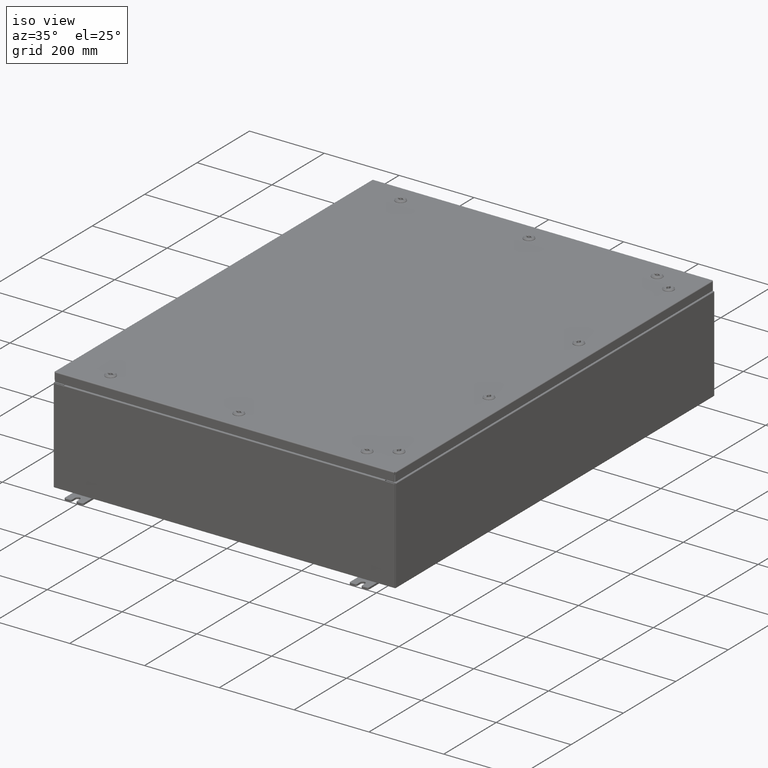
[diagram: clean part render]
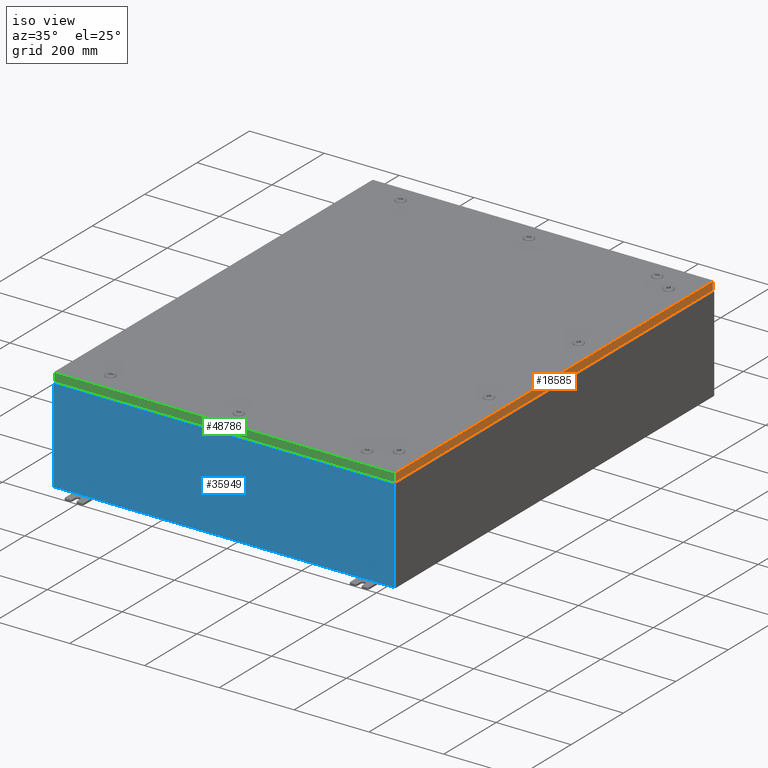
[diagram: same view with three faces highlighted in distinct colors, each labeled with its STEP entity id]
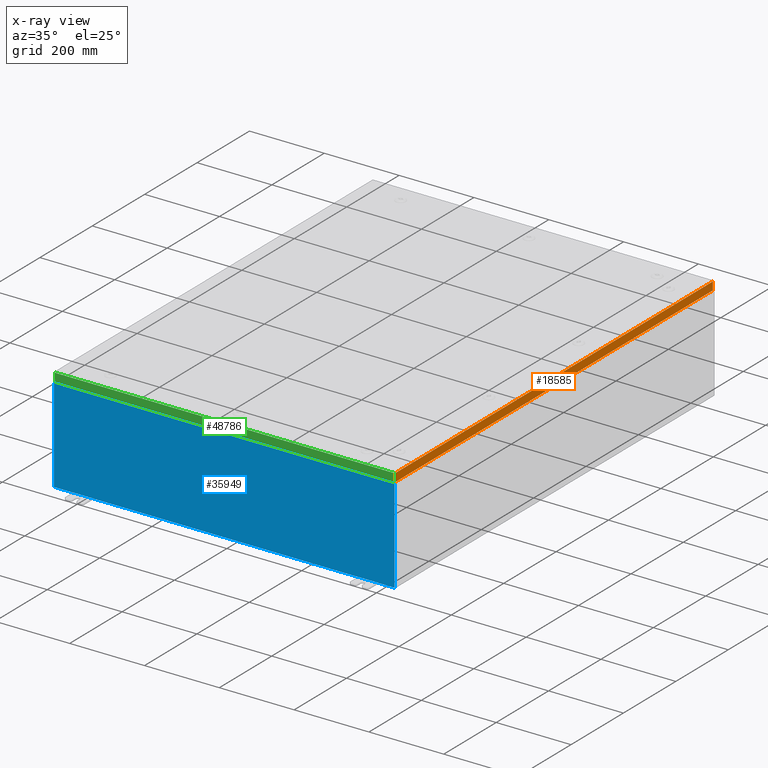
[diagram: x-ray of the same camera — body ghosted, the three highlighted faces saturated]
A machine part, iso view with three faces highlighted in distinct colors.
The next image is the same camera in x-ray (body ghosted, the three faces saturated) — at least one of them is partly hidden behind the body in this view.
Their STEP definitions:

[orange] entity #18585 — the highlighted planar face has unit normal (1, 0, 0).
#2752 = EDGE_CURVE ( 'NONE', #46686, #28953, #47072, .T. ) ;
#3829 = DIRECTION ( 'NONE',  ( 2.532419924601866100E-015, 0.0000000000000000000, -1.000000000000000000 ) ) ;
#3833 = VECTOR ( 'NONE', #40261, 39.37007874015748100 ) ;
#4733 = VECTOR ( 'NONE', #31591, 39.37007874015748100 ) ;
#9119 = VECTOR ( 'NONE', #50336, 39.37007874015748100 ) ;
#14327 = CARTESIAN_POINT ( 'NONE',  ( 17.93750000000000400, 0.0000000000000000000, 4.568609605355756000E-014 ) ) ;
#15690 = VERTEX_POINT ( 'NONE', #41107 ) ;
#18000 = LINE ( 'NONE', #40040, #3833 ) ;
#18585 = ADVANCED_FACE ( 'NONE', ( #44706 ), #30316, .T. ) ;
#19884 = AXIS2_PLACEMENT_3D ( 'NONE', #14327, #35665, #3829 ) ;
#20406 = VECTOR ( 'NONE', #26766, 39.37007874015748100 ) ;
#21076 = EDGE_CURVE ( 'NONE', #46686, #15690, #18000, .T. ) ;
#21451 = CARTESIAN_POINT ( 'NONE',  ( 17.93750000000000400, 0.0000000000000000000, -0.08770000000000008300 ) ) ;
#21709 = CARTESIAN_POINT ( 'NONE',  ( 17.93750000000000400, -23.84865786437626800, -0.08770000000000008300 ) ) ;
#22495 = EDGE_CURVE ( 'NONE', #28953, #25943, #48601, .T. ) ;
#23913 = CARTESIAN_POINT ( 'NONE',  ( 17.93750000000000400, -23.84865786437626800, -0.07469999999999980800 ) ) ;
#24496 = ORIENTED_EDGE ( 'NONE', *, *, #22495, .T. ) ;
#24933 = LINE ( 'NONE', #23913, #9119 ) ;
#25023 = ORIENTED_EDGE ( 'NONE', *, *, #2752, .T. ) ;
#25914 = ORIENTED_EDGE ( 'NONE', *, *, #21076, .F. ) ;
#25943 = VERTEX_POINT ( 'NONE', #21709 ) ;
#26766 = DIRECTION ( 'NONE',  ( 0.0000000000000000000, -1.000000000000000000, 0.0000000000000000000 ) ) ;
#28953 = VERTEX_POINT ( 'NONE', #68730 ) ;
#30316 = PLANE ( 'NONE',  #19884 ) ;
#31591 = DIRECTION ( 'NONE',  ( -2.532419924601866100E-015, -6.982962677686265900E-015, 1.000000000000000000 ) ) ;
#35665 = DIRECTION ( 'NONE',  ( 1.000000000000000000, 0.0000000000000000000, 2.532419924601866100E-015 ) ) ;
#37496 = CARTESIAN_POINT ( 'NONE',  ( 17.93750000000000400, 23.84865786437627500, 2.122203838334061400E-013 ) ) ;
#40040 = CARTESIAN_POINT ( 'NONE',  ( 17.93750000000000700, -23.93750000000000000, -0.9376999999999997600 ) ) ;
#40261 = DIRECTION ( 'NONE',  ( 0.0000000000000000000, -1.000000000000000000, 0.0000000000000000000 ) ) ;
#41107 = CARTESIAN_POINT ( 'NONE',  ( 17.93750000000000700, -23.84865786437626100, -0.9376999999999997600 ) ) ;
#41453 = CARTESIAN_POINT ( 'NONE',  ( 17.93750000000000700, 23.84865786437627800, -0.9376999999999997600 ) ) ;
#44706 = FACE_OUTER_BOUND ( 'NONE', #61059, .T. ) ;
#46686 = VERTEX_POINT ( 'NONE', #41453 ) ;
#47072 = LINE ( 'NONE', #37496, #4733 ) ;
#48601 = LINE ( 'NONE', #21451, #20406 ) ;
#50336 = DIRECTION ( 'NONE',  ( -2.532419924601866100E-015, -6.982962677686265900E-015, 1.000000000000000000 ) ) ;
#51911 = EDGE_CURVE ( 'NONE', #15690, #25943, #24933, .T. ) ;
#52709 = ORIENTED_EDGE ( 'NONE', *, *, #51911, .F. ) ;
#61059 = EDGE_LOOP ( 'NONE', ( #52709, #25914, #25023, #24496 ) ) ;
#68730 = CARTESIAN_POINT ( 'NONE',  ( 17.93750000000000400, 23.84865786437627100, -0.08770000000000008300 ) ) ;

[blue] entity #35949 — the highlighted planar face has unit normal (-0, 1, -0).
#109 = EDGE_CURVE ( 'NONE', #26538, #57749, #40598, .T. ) ;
#345 = VERTEX_POINT ( 'NONE', #37772 ) ;
#352 = CARTESIAN_POINT ( 'NONE',  ( 16.88720000000000000, 0.0000000000000000000, 4.874950000000000100 ) ) ;
#797 = CARTESIAN_POINT ( 'NONE',  ( -16.88720000000000000, -0.0000000000000000000, 0.0000000000000000000 ) ) ;
#1200 = VECTOR ( 'NONE', #51489, 39.37007874015748100 ) ;
#1507 = EDGE_CURVE ( 'NONE', #40546, #9545, #66312, .T. ) ;
#2013 = ORIENTED_EDGE ( 'NONE', *, *, #1507, .T. ) ;
#2713 = ORIENTED_EDGE ( 'NONE', *, *, #109, .T. ) ;
#3006 = DIRECTION ( 'NONE',  ( 1.000000000000000000, 0.0000000000000000000, 0.0000000000000000000 ) ) ;
#4511 = CARTESIAN_POINT ( 'NONE',  ( -17.92530000000000000, 0.0000000000000000000, -4.925300000000000000 ) ) ;
#4955 = CARTESIAN_POINT ( 'NONE',  ( -16.88720000000000000, -7.171100983368691200E-016, 4.912300000000000100 ) ) ;
#5503 = CARTESIAN_POINT ( 'NONE',  ( 16.92455000000000000, 0.0000000000000000000, 4.925300000000000000 ) ) ;
#5751 = EDGE_CURVE ( 'NONE', #60048, #49434, #12944, .T. ) ;
#6010 = DIRECTION ( 'NONE',  ( 0.0000000000000000000, 0.0000000000000000000, 1.000000000000000000 ) ) ;
#6534 = DIRECTION ( 'NONE',  ( -0.0000000000000000000, 1.000000000000000000, -0.0000000000000000000 ) ) ;
#7277 = PLANE ( 'NONE',  #38578 ) ;
#7410 = CARTESIAN_POINT ( 'NONE',  ( 16.88720000000000000, 0.0000000000000000000, 4.912300000000000100 ) ) ;
#7717 = DIRECTION ( 'NONE',  ( 0.0000000000000000000, 0.0000000000000000000, 1.000000000000000000 ) ) ;
#7913 = EDGE_CURVE ( 'NONE', #33857, #345, #46830, .T. ) ;
#8253 = LINE ( 'NONE', #13070, #36509 ) ;
#8584 = CARTESIAN_POINT ( 'NONE',  ( -16.88720000000000000, -7.171100983368691200E-016, 4.912300000000000100 ) ) ;
#9545 = VERTEX_POINT ( 'NONE', #43903 ) ;
#10595 = ORIENTED_EDGE ( 'NONE', *, *, #7913, .F. ) ;
#12944 = LINE ( 'NONE', #797, #53652 ) ;
#13070 = CARTESIAN_POINT ( 'NONE',  ( -16.92454999999999600, -0.0000000000000000000, 0.0000000000000000000 ) ) ;
#14366 = CARTESIAN_POINT ( 'NONE',  ( -17.92530000000000000, 0.0000000000000000000, 4.925300000000000000 ) ) ;
#14856 = CARTESIAN_POINT ( 'NONE',  ( 16.92454999999957700, -0.0000000000000000000, -1.469244821010341400E-012 ) ) ;
#14902 = ORIENTED_EDGE ( 'NONE', *, *, #22409, .T. ) ;
#15357 = ORIENTED_EDGE ( 'NONE', *, *, #52465, .F. ) ;
#16025 = ORIENTED_EDGE ( 'NONE', *, *, #18574, .T. ) ;
#16496 = CARTESIAN_POINT ( 'NONE',  ( 16.88720000000000000, 0.0000000000000000000, 0.0000000000000000000 ) ) ;
#17130 = FACE_OUTER_BOUND ( 'NONE', #34806, .T. ) ;
#18435 = CARTESIAN_POINT ( 'NONE',  ( 16.90587500000000200, 0.0000000000000000000, 4.874950000000000100 ) ) ;
#18574 = EDGE_CURVE ( 'NONE', #33857, #40546, #32264, .T. ) ;
#20800 = LINE ( 'NONE', #4511, #33238 ) ;
#22409 = EDGE_CURVE ( 'NONE', #60048, #23872, #53627, .T. ) ;
#23337 = DIRECTION ( 'NONE',  ( 0.0000000000000000000, -1.000000000000000000, 0.0000000000000000000 ) ) ;
#23702 = EDGE_CURVE ( 'NONE', #52297, #23872, #54593, .T. ) ;
#23780 = DIRECTION ( 'NONE',  ( 0.0000000000000000000, 0.0000000000000000000, -1.000000000000000000 ) ) ;
#23872 = VERTEX_POINT ( 'NONE', #7410 ) ;
#23963 = VECTOR ( 'NONE', #43856, 39.37007874015748100 ) ;
#25697 = VERTEX_POINT ( 'NONE', #30538 ) ;
#26459 = EDGE_CURVE ( 'NONE', #60594, #26538, #41847, .T. ) ;
#26538 = VERTEX_POINT ( 'NONE', #52411 ) ;
#29255 = ORIENTED_EDGE ( 'NONE', *, *, #23702, .F. ) ;
#30538 = CARTESIAN_POINT ( 'NONE',  ( -16.92454999999999600, 0.0000000000000000000, 4.874950000000000100 ) ) ;
#30620 = VECTOR ( 'NONE', #61911, 39.37007874015748100 ) ;
#32264 = LINE ( 'NONE', #56583, #30620 ) ;
#33238 = VECTOR ( 'NONE', #63066, 39.37007874015748100 ) ;
#33848 = CARTESIAN_POINT ( 'NONE',  ( -16.92454999999999600, 0.0000000000000000000, 4.925300000000000000 ) ) ;
#33857 = VERTEX_POINT ( 'NONE', #5503 ) ;
#34706 = CIRCLE ( 'NONE', #36605, 0.01867499999999949400 ) ;
#34806 = EDGE_LOOP ( 'NONE', ( #15357, #38285, #45834, #14902, #29255, #46384, #10595, #16025, #2013, #51319, #61383, #2713 ) ) ;
#35949 = ADVANCED_FACE ( 'NONE', ( #17130 ), #7277, .F. ) ;
#36509 = VECTOR ( 'NONE', #7717, 39.37007874015748100 ) ;
#36605 = AXIS2_PLACEMENT_3D ( 'NONE', #38345, #6534, #43631 ) ;
#37665 = DIRECTION ( 'NONE',  ( -8.681145560800009800E-014, 0.0000000000000000000, -1.000000000000000000 ) ) ;
#37772 = CARTESIAN_POINT ( 'NONE',  ( 16.92455000000000000, 0.0000000000000000000, 4.874950000000000100 ) ) ;
#38264 = CARTESIAN_POINT ( 'NONE',  ( -17.92530000000000000, 0.0000000000000000000, -4.925300000000000000 ) ) ;
#38285 = ORIENTED_EDGE ( 'NONE', *, *, #40305, .F. ) ;
#38345 = CARTESIAN_POINT ( 'NONE',  ( -16.90587499999999800, 0.0000000000000000000, 4.874950000000000100 ) ) ;
#38578 = AXIS2_PLACEMENT_3D ( 'NONE', #55129, #23337, #60466 ) ;
#39601 = CARTESIAN_POINT ( 'NONE',  ( -16.88720000000000000, -0.0000000000000000000, 4.874950000000000100 ) ) ;
#40305 = EDGE_CURVE ( 'NONE', #49434, #25697, #34706, .T. ) ;
#40400 = VECTOR ( 'NONE', #6010, 39.37007874015748100 ) ;
#40546 = VERTEX_POINT ( 'NONE', #46433 ) ;
#40598 = LINE ( 'NONE', #68309, #51437 ) ;
#41847 = LINE ( 'NONE', #14366, #1200 ) ;
#43631 = DIRECTION ( 'NONE',  ( 0.0000000000000000000, 0.0000000000000000000, -1.000000000000000000 ) ) ;
#43856 = DIRECTION ( 'NONE',  ( 0.0000000000000000000, 0.0000000000000000000, -1.000000000000000000 ) ) ;
#43903 = CARTESIAN_POINT ( 'NONE',  ( 17.92530000000000000, 0.0000000000000000000, -4.925300000000000000 ) ) ;
#45140 = VECTOR ( 'NONE', #37665, 39.37007874015748100 ) ;
#45834 = ORIENTED_EDGE ( 'NONE', *, *, #5751, .F. ) ;
#46384 = ORIENTED_EDGE ( 'NONE', *, *, #64205, .F. ) ;
#46433 = CARTESIAN_POINT ( 'NONE',  ( 17.92530000000000000, 0.0000000000000000000, 4.925300000000000000 ) ) ;
#46830 = LINE ( 'NONE', #14856, #45140 ) ;
#49017 = CARTESIAN_POINT ( 'NONE',  ( 17.92530000000000000, 0.0000000000000000000, 4.925300000000000000 ) ) ;
#49434 = VERTEX_POINT ( 'NONE', #39601 ) ;
#50280 = VECTOR ( 'NONE', #52784, 39.37007874015748100 ) ;
#51319 = ORIENTED_EDGE ( 'NONE', *, *, #51592, .T. ) ;
#51437 = VECTOR ( 'NONE', #3006, 39.37007874015748100 ) ;
#51489 = DIRECTION ( 'NONE',  ( -0.0000000000000000000, -0.0000000000000000000, 1.000000000000000000 ) ) ;
#51592 = EDGE_CURVE ( 'NONE', #9545, #60594, #20800, .T. ) ;
#52297 = VERTEX_POINT ( 'NONE', #352 ) ;
#52411 = CARTESIAN_POINT ( 'NONE',  ( -17.92530000000000000, 0.0000000000000000000, 4.925300000000000000 ) ) ;
#52465 = EDGE_CURVE ( 'NONE', #25697, #57749, #8253, .T. ) ;
#52784 = DIRECTION ( 'NONE',  ( 1.000000000000000000, 0.0000000000000000000, 0.0000000000000000000 ) ) ;
#53627 = LINE ( 'NONE', #4955, #50280 ) ;
#53652 = VECTOR ( 'NONE', #58210, 39.37007874015748100 ) ;
#54593 = LINE ( 'NONE', #16496, #40400 ) ;
#55129 = CARTESIAN_POINT ( 'NONE',  ( 0.0000000000000000000, 0.0000000000000000000, 0.0000000000000000000 ) ) ;
#55577 = DIRECTION ( 'NONE',  ( -0.0000000000000000000, 1.000000000000000000, -0.0000000000000000000 ) ) ;
#56583 = CARTESIAN_POINT ( 'NONE',  ( -17.92530000000000000, 0.0000000000000000000, 4.925300000000000000 ) ) ;
#57749 = VERTEX_POINT ( 'NONE', #33848 ) ;
#58210 = DIRECTION ( 'NONE',  ( 0.0000000000000000000, 0.0000000000000000000, -1.000000000000000000 ) ) ;
#60048 = VERTEX_POINT ( 'NONE', #8584 ) ;
#60466 = DIRECTION ( 'NONE',  ( 0.0000000000000000000, -0.0000000000000000000, -1.000000000000000000 ) ) ;
#60594 = VERTEX_POINT ( 'NONE', #38264 ) ;
#61383 = ORIENTED_EDGE ( 'NONE', *, *, #26459, .T. ) ;
#61911 = DIRECTION ( 'NONE',  ( 1.000000000000000000, 0.0000000000000000000, 0.0000000000000000000 ) ) ;
#62048 = CIRCLE ( 'NONE', #64039, 0.01867499999999949400 ) ;
#63066 = DIRECTION ( 'NONE',  ( -1.000000000000000000, -0.0000000000000000000, -0.0000000000000000000 ) ) ;
#64039 = AXIS2_PLACEMENT_3D ( 'NONE', #18435, #55577, #23780 ) ;
#64205 = EDGE_CURVE ( 'NONE', #345, #52297, #62048, .T. ) ;
#66312 = LINE ( 'NONE', #49017, #23963 ) ;
#68309 = CARTESIAN_POINT ( 'NONE',  ( -17.92530000000000000, 0.0000000000000000000, 4.925300000000000000 ) ) ;

[green] entity #48786 — the highlighted planar face has unit normal (-0, 1, -0).
#1410 = VERTEX_POINT ( 'NONE', #4707 ) ;
#3549 = CARTESIAN_POINT ( 'NONE',  ( 1.477165351427591000E-029, -23.93750000000000000, 1.215004175463259200E-013 ) ) ;
#4707 = CARTESIAN_POINT ( 'NONE',  ( -17.84865786437627100, -23.93750000000000400, -0.9376999999999954300 ) ) ;
#8849 = DIRECTION ( 'NONE',  ( -0.0000000000000000000, -5.064839849203732200E-015, -1.000000000000000000 ) ) ;
#9962 = DIRECTION ( 'NONE',  ( -1.000000000000000000, -0.0000000000000000000, 1.218385167906012700E-016 ) ) ;
#11693 = EDGE_CURVE ( 'NONE', #61180, #61286, #38647, .T. ) ;
#14212 = CARTESIAN_POINT ( 'NONE',  ( 17.84865786437627100, -23.93750000000000000, -0.07469999999999962800 ) ) ;
#14274 = DIRECTION ( 'NONE',  ( 0.0000000000000000000, 5.064839849203732200E-015, 1.000000000000000000 ) ) ;
#14647 = ORIENTED_EDGE ( 'NONE', *, *, #24522, .F. ) ;
#15075 = ORIENTED_EDGE ( 'NONE', *, *, #11693, .F. ) ;
#16367 = CARTESIAN_POINT ( 'NONE',  ( 17.84865786437627100, -23.93750000000000000, -0.08769999999999550400 ) ) ;
#23387 = ORIENTED_EDGE ( 'NONE', *, *, #38751, .T. ) ;
#24349 = VERTEX_POINT ( 'NONE', #26637 ) ;
#24522 = EDGE_CURVE ( 'NONE', #24349, #61180, #66974, .T. ) ;
#26637 = CARTESIAN_POINT ( 'NONE',  ( -17.84865786437627100, -23.93750000000000000, -0.08769999999999550400 ) ) ;
#27165 = AXIS2_PLACEMENT_3D ( 'NONE', #3549, #67201, #14274 ) ;
#28944 = CARTESIAN_POINT ( 'NONE',  ( -17.84865786437626800, -23.93750000000000000, 1.215004175463259200E-013 ) ) ;
#36437 = CARTESIAN_POINT ( 'NONE',  ( 17.93750000000000400, -23.93750000000000400, -0.9376999999999997600 ) ) ;
#38413 = FACE_OUTER_BOUND ( 'NONE', #47574, .T. ) ;
#38443 = DIRECTION ( 'NONE',  ( 1.000000000000000000, 6.170925750089154100E-031, -3.189293793798685400E-045 ) ) ;
#38647 = LINE ( 'NONE', #14212, #49455 ) ;
#38751 = EDGE_CURVE ( 'NONE', #24349, #1410, #55491, .T. ) ;
#39016 = LINE ( 'NONE', #36437, #65617 ) ;
#46030 = PLANE ( 'NONE',  #27165 ) ;
#47574 = EDGE_LOOP ( 'NONE', ( #14647, #23387, #48912, #15075 ) ) ;
#48786 = ADVANCED_FACE ( 'NONE', ( #38413 ), #46030, .F. ) ;
#48888 = CARTESIAN_POINT ( 'NONE',  ( 17.93750000000000400, -23.93750000000000000, -0.08769999999999550400 ) ) ;
#48912 = ORIENTED_EDGE ( 'NONE', *, *, #60222, .F. ) ;
#49455 = VECTOR ( 'NONE', #8849, 39.37007874015748100 ) ;
#52858 = VECTOR ( 'NONE', #38443, 39.37007874015748100 ) ;
#53983 = CARTESIAN_POINT ( 'NONE',  ( 17.84865786437627100, -23.93750000000000400, -0.9376999999999997600 ) ) ;
#55491 = LINE ( 'NONE', #28944, #67939 ) ;
#60222 = EDGE_CURVE ( 'NONE', #61286, #1410, #39016, .T. ) ;
#61180 = VERTEX_POINT ( 'NONE', #16367 ) ;
#61286 = VERTEX_POINT ( 'NONE', #53983 ) ;
#65617 = VECTOR ( 'NONE', #9962, 39.37007874015748100 ) ;
#66084 = DIRECTION ( 'NONE',  ( 0.0000000000000000000, -5.064839849203732200E-015, -1.000000000000000000 ) ) ;
#66974 = LINE ( 'NONE', #48888, #52858 ) ;
#67201 = DIRECTION ( 'NONE',  ( -6.170925750089153200E-031, 1.000000000000000000, -5.064839849203732200E-015 ) ) ;
#67939 = VECTOR ( 'NONE', #66084, 39.37007874015748100 ) ;